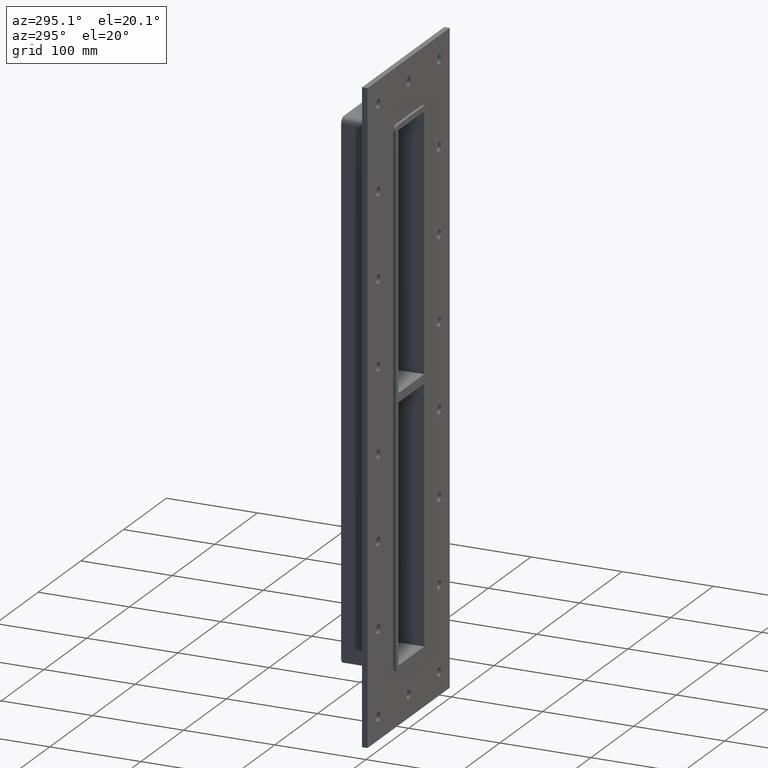
[diagram: clean part render]
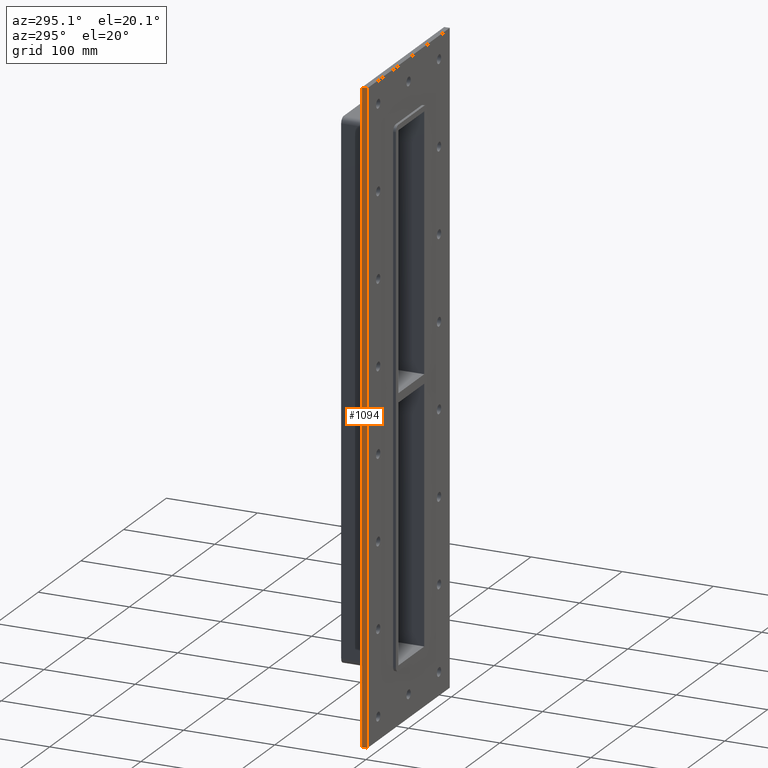
[diagram: same view with one face highlighted and labeled with its STEP entity id]
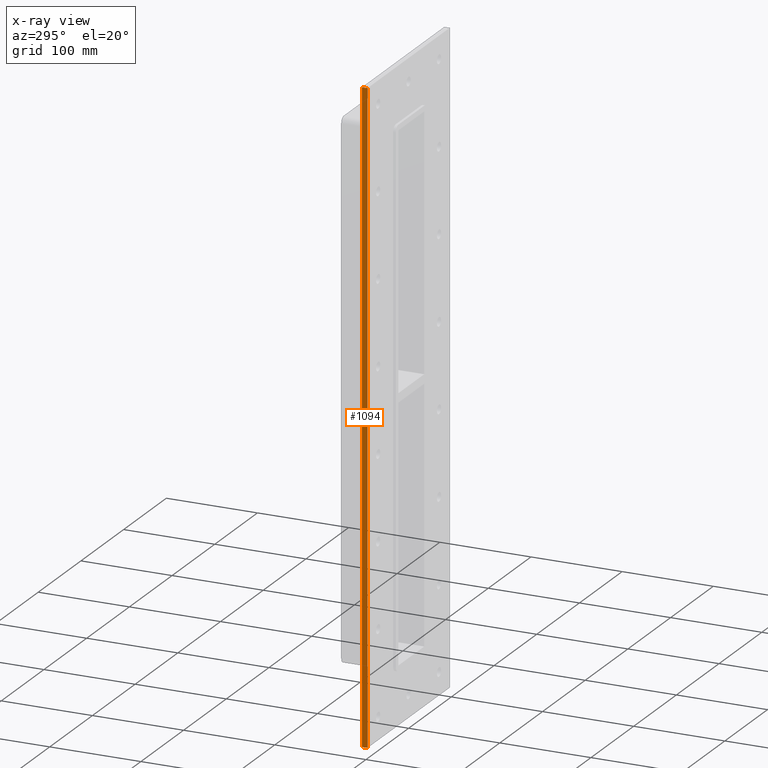
[diagram: x-ray of the same camera — body ghosted, the highlighted face saturated]
A machine part, auxiliary view. The second image highlights one B-rep face of the part: STEP entity #1094.
The next image is the same camera in x-ray: the body ghosted, the highlighted face saturated — about 0% of this face is hidden behind the body in this view.
In plain terms, the highlighted planar face has unit normal (-1, 0, 0).
Its self-contained STEP definition (entity closure, byte-faithful):
#750=CARTESIAN_POINT('',(-96.25,6.000000000000001,349.0));
#751=VERTEX_POINT('',#750);
#768=CARTESIAN_POINT('',(-96.25,6.000000000000001,-348.99999999999983));
#769=VERTEX_POINT('',#768);
#776=CARTESIAN_POINT('',(-96.25,6.000000000000001,-348.99999999999989));
#777=DIRECTION('',(0.0,0.0,1.0));
#778=VECTOR('',#777,697.99999999999977);
#779=LINE('',#776,#778);
#780=EDGE_CURVE('',#769,#751,#779,.T.);
#914=CARTESIAN_POINT('',(-96.25,0.0,349.0));
#915=VERTEX_POINT('',#914);
#924=CARTESIAN_POINT('',(-96.25,0.0,-348.99999999999989));
#925=VERTEX_POINT('',#924);
#926=CARTESIAN_POINT('',(-96.25,0.0,-348.99999999999989));
#927=DIRECTION('',(0.0,0.0,1.0));
#928=VECTOR('',#927,697.99999999999977);
#929=LINE('',#926,#928);
#930=EDGE_CURVE('',#925,#915,#929,.T.);
#1073=CARTESIAN_POINT('',(-96.25,0.0,-348.99999999999989));
#1074=DIRECTION('',(-1.0,0.0,0.0));
#1075=DIRECTION('',(0.0,0.0,1.0));
#1076=AXIS2_PLACEMENT_3D('',#1073,#1074,#1075);
#1077=PLANE('',#1076);
#1078=ORIENTED_EDGE('',*,*,#930,.T.);
#1079=CARTESIAN_POINT('',(-96.25,0.0,349.0));
#1080=DIRECTION('',(0.0,1.0,0.0));
#1081=VECTOR('',#1080,6.000000000000001);
#1082=LINE('',#1079,#1081);
#1083=EDGE_CURVE('',#915,#751,#1082,.T.);
#1084=ORIENTED_EDGE('',*,*,#1083,.T.);
#1085=ORIENTED_EDGE('',*,*,#780,.F.);
#1086=CARTESIAN_POINT('',(-96.25,0.0,-348.99999999999989));
#1087=DIRECTION('',(0.0,1.0,0.0));
#1088=VECTOR('',#1087,6.000000000000001);
#1089=LINE('',#1086,#1088);
#1090=EDGE_CURVE('',#925,#769,#1089,.T.);
#1091=ORIENTED_EDGE('',*,*,#1090,.F.);
#1092=EDGE_LOOP('',(#1078,#1084,#1085,#1091));
#1093=FACE_OUTER_BOUND('',#1092,.T.);
#1094=ADVANCED_FACE('',(#1093),#1077,.T.);